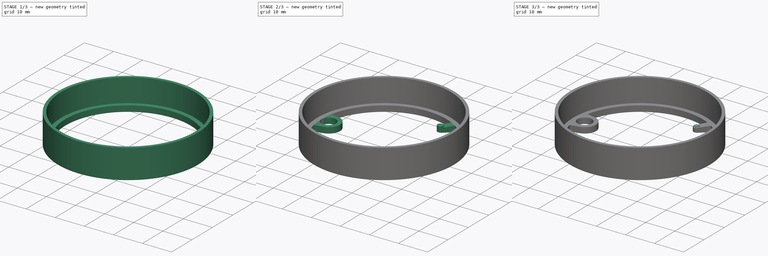
[diagram: build sequence overview — one tinted view per stage of 3, left to right]
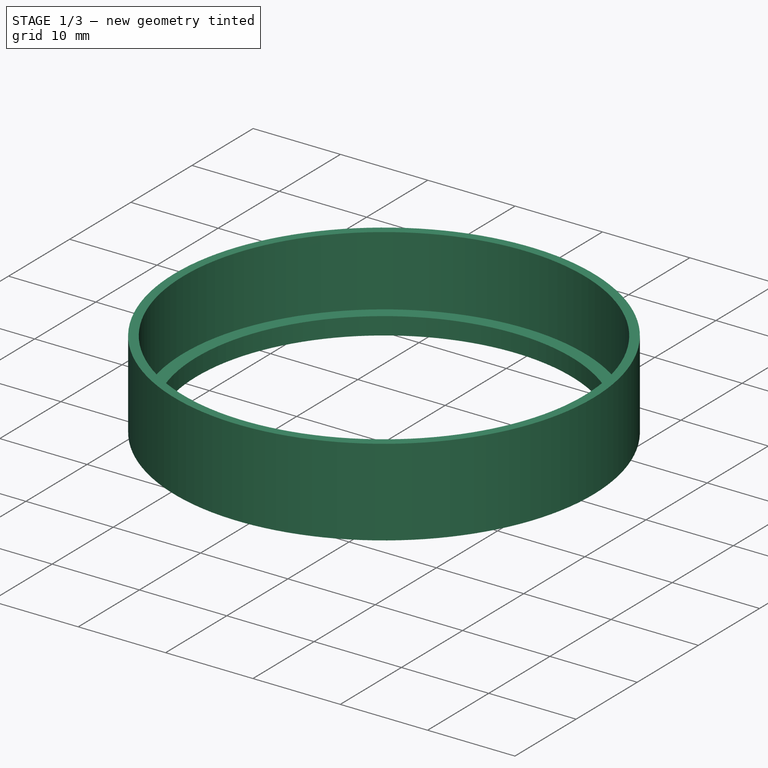
[diagram: stage 1 of 3 — iso view after this stage's code; geometry added in this stage tinted green]
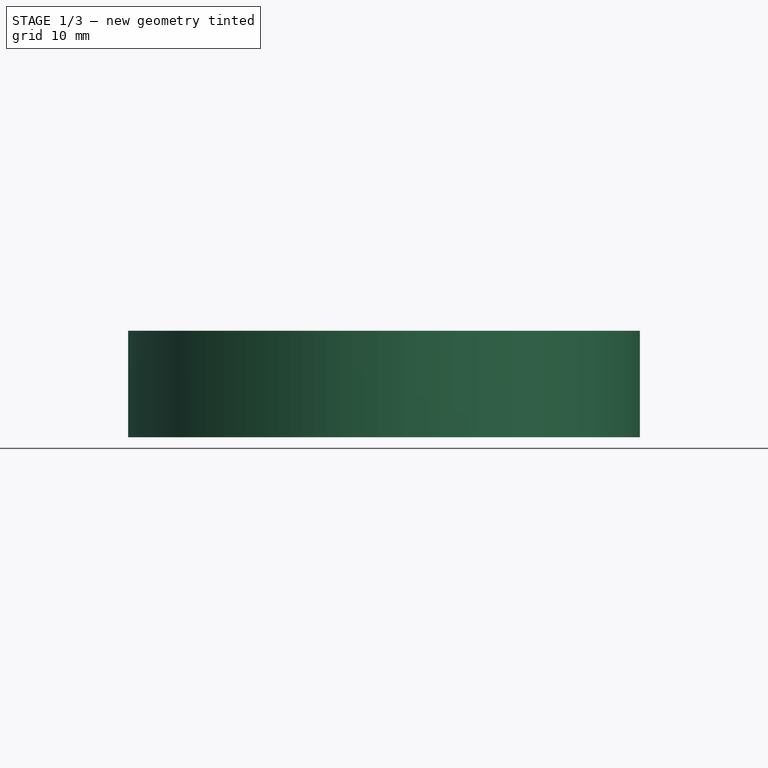
[diagram: stage 1 of 3 — front view after this stage's code; geometry added in this stage tinted green]
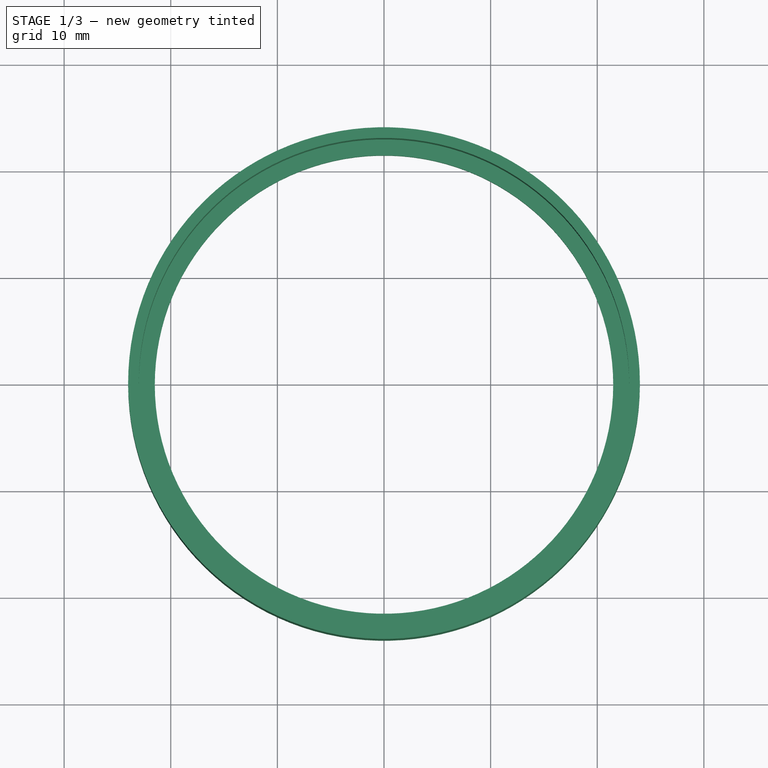
[diagram: stage 1 of 3 — top view after this stage's code; geometry added in this stage tinted green]
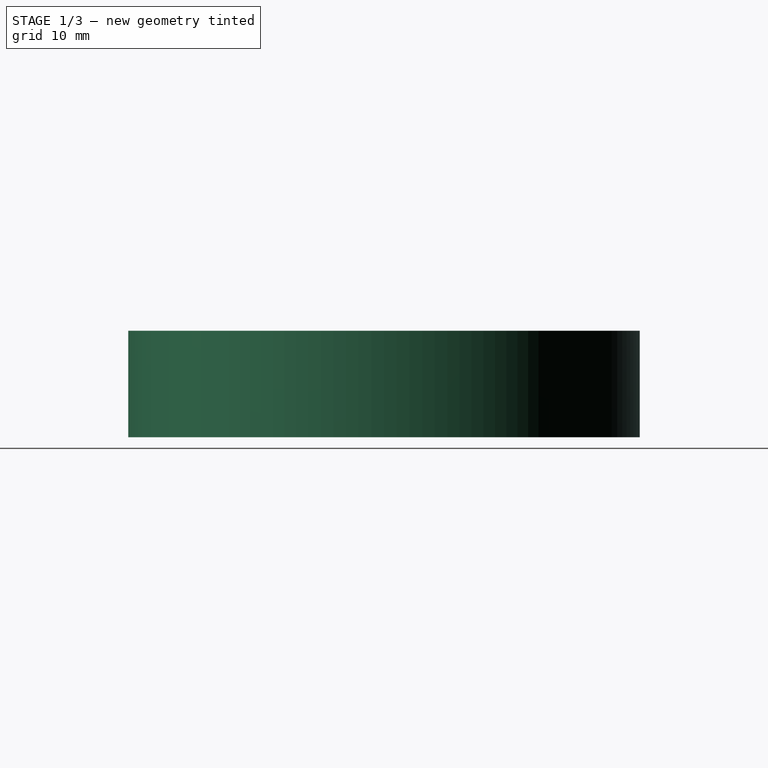
[diagram: stage 1 of 3 — right view after this stage's code; geometry added in this stage tinted green]
FCSTD DOCUMENT  (FreeCAD 0.22R37841 (Git))
Label: cover_SLA
License: All rights reserved
LicenseURL: http://en.wikipedia.org/wiki/All_rights_reserved
objects: Sketcher::SketchObject×5, PartDesign::CoordinateSystem×2, PartDesign::Pad×2, PartDesign::Chamfer×2, PartDesign::Revolution×1, PartDesign::Pocket×1, PartDesign::Groove×1, PartDesign::Body×1, App::Part×1
note: 22 computed .brp shape members not serialized (recipe doc carries the construction recipe); baked Part::Feature solids carry a one-line shape summary decoded from their .brp

FEATURE [PartDesign::CoordinateSystem] LCS_Origin
  AttacherType = Attacher::AttachEngine3D
  AttachmentSupport = -> [X_Axis]
  MapMode = 2
FEATURE [PartDesign::CoordinateSystem] LCS_Origin001
  AttacherType = Attacher::AttachEngine3D
  AttachmentSupport = -> [X_Axis001]
  MapMode = 2
FEATURE [Sketcher::SketchObject] Sketch
  AttachmentSupport = -> [XZ_Plane001]
  FullyConstrained = true
  MapMode = 5
  Placement = pos=(0,0,0) rot=(1,0,0;1.5708rad)
  sketch-geometry (8):
    g0: LineSegment StartX=0 StartY=0 StartZ=0 EndX=0 EndY=13 EndZ=0
    g1: LineSegment StartX=21.5 StartY=5 StartZ=0 EndX=21.5 EndY=3 EndZ=0
    g2: LineSegment StartX=21.5 StartY=3 StartZ=0 EndX=24 EndY=3 EndZ=0
    g3: LineSegment StartX=24 StartY=3 StartZ=0 EndX=24 EndY=13 EndZ=0
    g4: LineSegment StartX=23 StartY=13 StartZ=0 EndX=23 EndY=5 EndZ=0
    g5: LineSegment StartX=23 StartY=5 StartZ=0 EndX=21.5 EndY=5 EndZ=0
    g6: LineSegment StartX=24 StartY=13 StartZ=0 EndX=23 EndY=13 EndZ=0
    g7: GeomPoint X=21.5 Y=4 Z=0
  constraints (22):
    c: Coincident(g0,g-1)
    c: PointOnObject(g0,g-2)
    c: Coincident(g2,g1)
    c: Horizontal(g2)
    c: Coincident(g3,g2)
    c: Vertical(g3)
    c: Vertical(g4)
    c: Coincident(g5,g4)
    c: Coincident(g5,g1)
    c: Vertical(g1)
    c: DistanceX(g0,g4) = 23
    c: Horizontal(g5)
    c: Coincident(g6,g3)
    c: Horizontal(g6)
    c: DistanceY(g1,g1) = 2
    c: DistanceX(g0,g1) = 21.5
    c: Coincident(g6,g4)
    c: DistanceX(g0,g2) = 24
    c: DistanceY(g3,g3) = 10
    c: Symmetric(g1,g1,g7)
    c: DistanceY(g0,g7) = 4
    c: Horizontal(g4,g0)
FEATURE [PartDesign::Revolution] Revolution
  Angle = 360
  Angle2 = 60
  Axis = (0,2e-16,1)
  Base = (0,0,0)
  Placement = pos=(0,0,0) rot=(1,0,0;1.5708rad)
  Profile = -> Sketch
  ReferenceAxis = -> Sketch [V_Axis]
  Reversed = true
  Suppressed = false
  Type = 0
FEATURE [Sketcher::SketchObject] Sketch001
  AttachmentSupport = -> [XY_Plane001]
  FullyConstrained = true
  MapMode = 5
  sketch-geometry (9):
    g0: Circle CenterX=0 CenterY=0 CenterZ=0 NormalX=0 NormalY=0 NormalZ=1 AngleXU=0 Radius=17.5
    g1: Circle CenterX=-17.5 CenterY=0 CenterZ=0 NormalX=0 NormalY=0 NormalZ=1 AngleXU=0 Radius=2.625
    g2: Circle CenterX=-8.75 CenterY=15.1554 CenterZ=0 NormalX=0 NormalY=0 NormalZ=1 AngleXU=0 Radius=2.625
    g3: Circle CenterX=8.75 CenterY=15.1554 CenterZ=0 NormalX=0 NormalY=0 NormalZ=1 AngleXU=0 Radius=2.625
    g4: Circle CenterX=17.5 CenterY=0 CenterZ=0 NormalX=0 NormalY=0 NormalZ=1 AngleXU=0 Radius=2.625
    g5: Circle CenterX=8.75 CenterY=-15.1554 CenterZ=0 NormalX=0 NormalY=0 NormalZ=1 AngleXU=0 Radius=2.625
    g6: Circle CenterX=-8.75 CenterY=-15.1554 CenterZ=0 NormalX=0 NormalY=0 NormalZ=1 AngleXU=0 Radius=2.625
    g7: LineSegment StartX=-8.75 StartY=15.1554 StartZ=0 EndX=0 EndY=0 EndZ=0
    g8: LineSegment StartX=0 StartY=0 StartZ=0 EndX=8.75 EndY=-15.1554 EndZ=0
  constraints (24):
    c: Coincident(g0,g-1)
    c: PointOnObject(g1,g0)
    c: PointOnObject(g2,g0)
    c: PointOnObject(g3,g0)
    c: PointOnObject(g4,g0)
    c: PointOnObject(g5,g0)
    c: PointOnObject(g6,g0)
    c: PointOnObject(g1,g-1)
    c: PointOnObject(g4,g-1)
    c: Equal(g1,g2)
    c: Equal(g2,g3)
    c: Equal(g3,g4)
    c: Equal(g4,g5)
    c: Equal(g5,g6)
    c: Diameter(g4) = 5.25
    c: Coincident(g7,g2)
    c: Coincident(g7,g0)
    c: Coincident(g8,g0)
    c: Coincident(g8,g5)
    c: Parallel(g7,g8)
    c: Vertical(g2,g6)
    c: Vertical(g5,g3)
    c: Angle(g-1,g7) = 2.0944
    c: Diameter(g0) = 35
FEATURE [PartDesign::Pocket] Pocket
  BaseFeature = -> Revolution
  Direction = (0,0,-1)
  Length = 5.5
  Length2 = 5
  Placement = pos=(0,0,0) rot=(1,0,0;1.5708rad)
  Profile = -> Sketch001
  ReferenceAxis = -> Sketch001 [N_Axis]
  Reversed = true
  Suppressed = false
  Type = 0
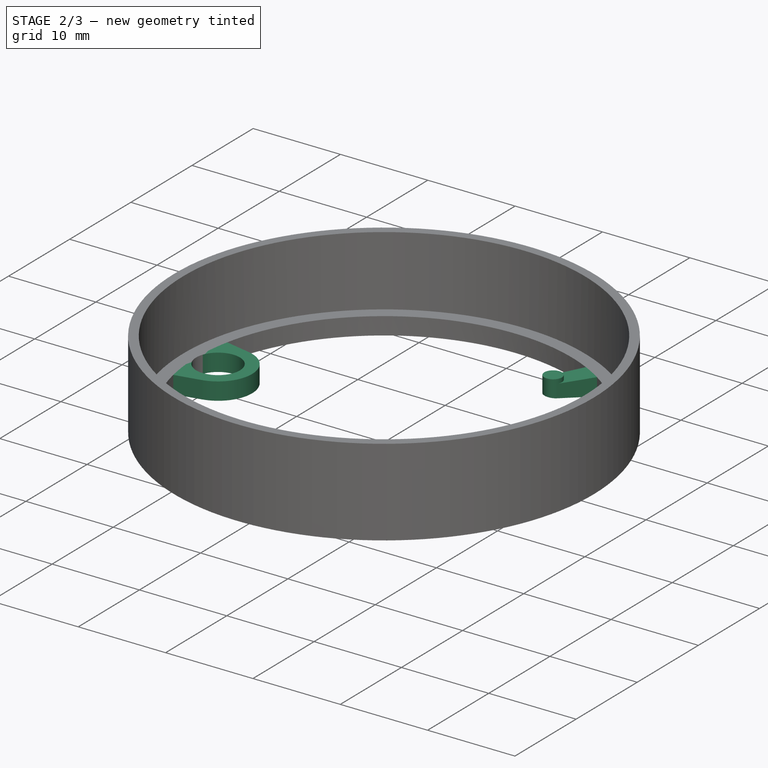
[diagram: stage 2 of 3 — iso view after this stage's code; geometry added in this stage tinted green]
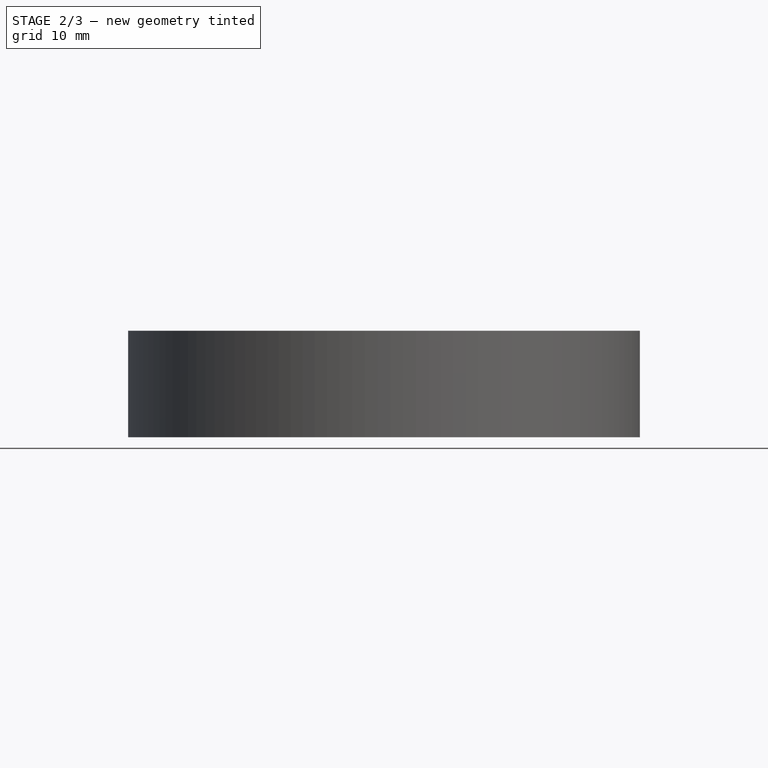
[diagram: stage 2 of 3 — front view after this stage's code; geometry added in this stage tinted green]
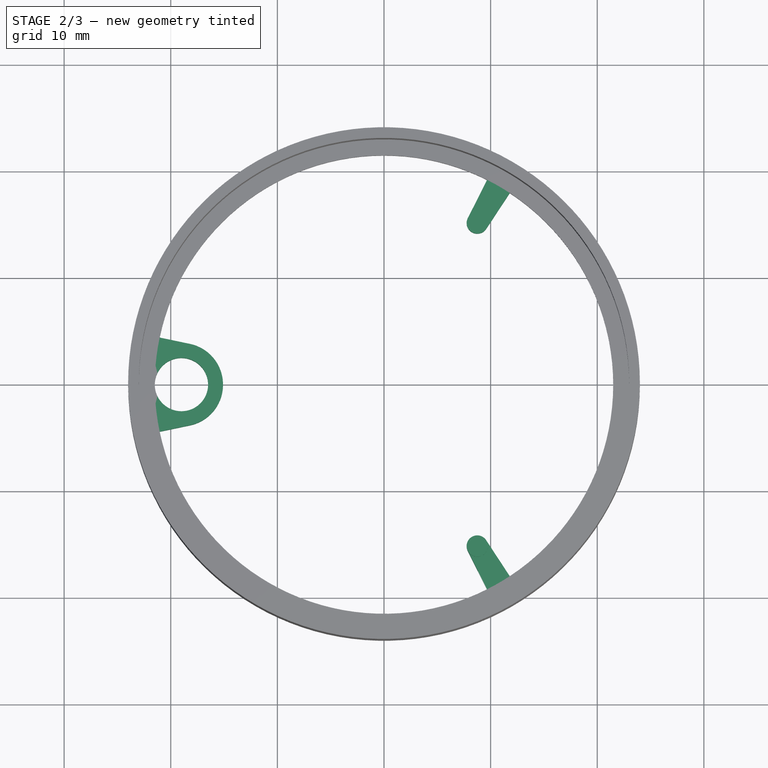
[diagram: stage 2 of 3 — top view after this stage's code; geometry added in this stage tinted green]
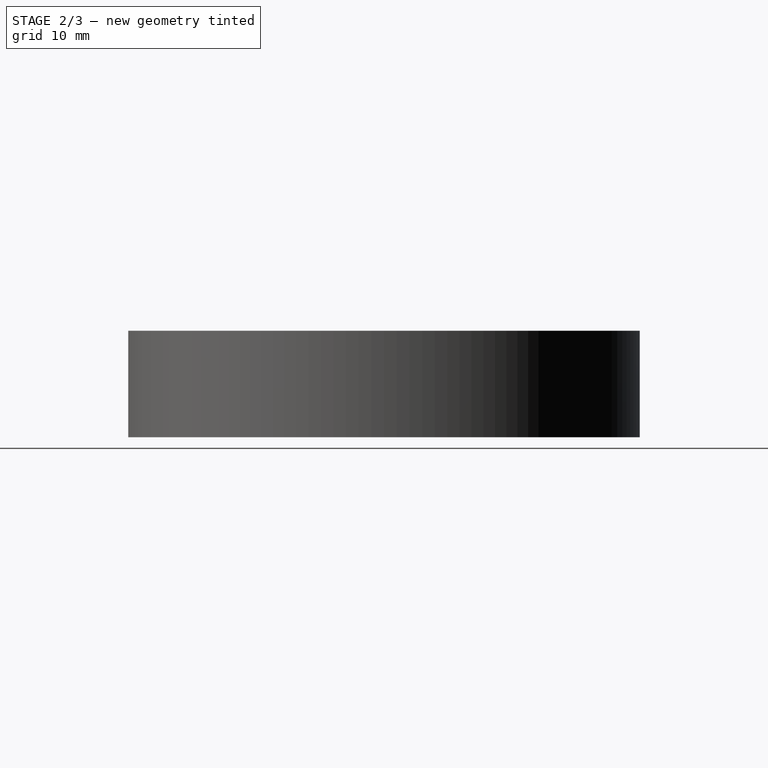
[diagram: stage 2 of 3 — right view after this stage's code; geometry added in this stage tinted green]
FEATURE [Sketcher::SketchObject] Sketch003
  AttachmentOffset = pos=(0,0,3) rot=(0,0,1;0rad)
  AttachmentSupport = -> [XY_Plane001]
  FullyConstrained = true
  MapMode = 5
  Placement = pos=(0,0,3) rot=(0,0,1;0rad)
  sketch-geometry (19):
    g0: ArcOfCircle CenterX=0 CenterY=0 CenterZ=0 NormalX=0 NormalY=0 NormalZ=1 AngleXU=0 Radius=23 StartAngle=2.93486 EndAngle=3.34833
    g1: ArcOfCircle CenterX=-19 CenterY=0 CenterZ=0 NormalX=0 NormalY=0 NormalZ=1 AngleXU=0 Radius=3.9 StartAngle=4.91912 EndAngle=7.64725
    g2: LineSegment StartX=-18.1995 StartY=-3.81696 StartZ=0 EndX=-22.5103 EndY=-4.72105 EndZ=0
    g3: LineSegment StartX=-18.1995 StartY=3.81696 StartZ=0 EndX=-22.5103 EndY=4.72105 EndZ=0
    g4: GeomPoint X=-3e-15 Y=0 Z=0
    g5: Circle CenterX=-19 CenterY=0 CenterZ=0 NormalX=0 NormalY=0 NormalZ=1 AngleXU=0 Radius=2.5
    g6: Circle CenterX=-3e-15 CenterY=0 CenterZ=0 NormalX=0 NormalY=0 NormalZ=1 AngleXU=0 Radius=15.1
    g7: Circle CenterX=0 CenterY=0 CenterZ=0 NormalX=0 NormalY=0 NormalZ=1 AngleXU=0 Radius=19
    g8: ArcOfCircle CenterX=8.75 CenterY=15.1554 CenterZ=0 NormalX=0 NormalY=0 NormalZ=1 AngleXU=0 Radius=1 StartAngle=2.67517 EndAngle=5.70241
    g9: ArcOfCircle CenterX=0 CenterY=0 CenterZ=0 NormalX=0 NormalY=0 NormalZ=1 AngleXU=0 Radius=23 StartAngle=0.990024 EndAngle=1.10437
    g10: ArcOfCircle CenterX=0 CenterY=0 CenterZ=0 NormalX=0 NormalY=0 NormalZ=1 AngleXU=0 Radius=23 StartAngle=5.17881 EndAngle=5.29316
    g11: ArcOfCircle CenterX=8.75 CenterY=-15.1554 CenterZ=0 NormalX=0 NormalY=0 NormalZ=1 AngleXU=0 Radius=1 StartAngle=0.580773 EndAngle=3.60802
    g12: Circle CenterX=0 CenterY=0 CenterZ=0 NormalX=0 NormalY=0 NormalZ=1 AngleXU=0 Radius=17.5
    g13: LineSegment StartX=0 StartY=0 StartZ=0 EndX=8.75 EndY=-15.1554 EndZ=0
    g14: LineSegment StartX=0 StartY=0 StartZ=0 EndX=8.75 EndY=15.1554 EndZ=0
    g15: LineSegment StartX=10.343 StartY=20.5432 StartZ=0 EndX=7.85682 EndY=15.6051 EndZ=0
    g16: LineSegment StartX=12.6194 StartY=19.2289 StartZ=0 EndX=9.58604 EndY=14.6068 EndZ=0
    g17: LineSegment StartX=12.6194 StartY=-19.2289 StartZ=0 EndX=9.58604 EndY=-14.6068 EndZ=0
    g18: LineSegment StartX=10.343 StartY=-20.5432 StartZ=0 EndX=7.85682 EndY=-15.6051 EndZ=0
  constraints (47):
    c: Coincident(g0,g-1)
    c: Coincident(g2,g0)
    c: Tangent(g2,g1) = 1.5708
    c: Radius(g0) = 23
    c: Coincident(g3,g0)
    c: Tangent(g3,g1) = -1.5708
    c: PointOnObject(g4,g2)
    c: PointOnObject(g4,g3)
    c: PointOnObject(g1,g-1)
    c: PointOnObject(g4,g-1)
    c: PointOnObject(g0,g3)
    c: Coincident(g5,g1)
    c: Diameter(g5) = 5
    c: Coincident(g6,g4)
    c: Tangent(g1,g6)
    c: Diameter(g6) = 30.2
    c: Coincident(g7,g0)
    c: PointOnObject(g1,g7)
    c: Diameter(g7) = 38
    c: Coincident(g9,g0)
    c: Coincident(g10,g0)
    c: Coincident(g12,g0)
    c: PointOnObject(g11,g12)
    c: Diameter(g12) = 35
    c: Coincident(g13,g0)
    c: Coincident(g13,g11)
    c: Coincident(g14,g0)
    c: Coincident(g14,g8)
    c: PointOnObject(g8,g12)
    c: Angle(g-1,g14) = 1.0472
    c: Coincident(g15,g9)
    c: Coincident(g16,g9)
    c: Coincident(g17,g10)
    c: Coincident(g18,g10)
    c: Angle(g13,g-1) = 1.0472
    c: Equal(g8,g11)
    c: Equal(g10,g9)
    c: Equal(g10,g0)
    c: Tangent(g18,g11) = 1.5708
    c: Tangent(g17,g11) = -1.5708
    c: Tangent(g15,g8) = -1.5708
    c: Tangent(g16,g8) = 1.5708
    c: PointOnObject(g0,g15)
    c: PointOnObject(g0,g18)
    c: PointOnObject(g0,g17)
    c: Radius(g8) = 1
    c: PointOnObject(g0,g16)
FEATURE [PartDesign::Pad] Pad
  BaseFeature = -> Pocket
  Direction = (0,0,1)
  Length = 2
  Length2 = 10
  Placement = pos=(0,0,0) rot=(1,0,0;1.5708rad)
  Profile = -> Sketch003
  ReferenceAxis = -> Sketch003 [N_Axis]
  Suppressed = false
  Type = 0
FEATURE [Sketcher::SketchObject] Sketch004
  AttachmentSupport = -> [YZ_Plane001]
  FullyConstrained = true
  MapMode = 5
  Placement = pos=(0,0,0) rot=(0.57735,0.57735,0.57735;2.0944rad)
  sketch-geometry (4):
    g0: LineSegment StartX=0 StartY=3 StartZ=0 EndX=-21.5 EndY=3 EndZ=0
    g1: LineSegment StartX=-21.5 StartY=3 StartZ=0 EndX=0 EndY=5.6875 EndZ=0
    g2: LineSegment StartX=0 StartY=3 StartZ=0 EndX=0 EndY=5.6875 EndZ=0
    g3: LineSegment StartX=-17.5 StartY=3 StartZ=0 EndX=-17.5 EndY=3.5 EndZ=0
  constraints (13):
    c: PointOnObject(g0,g-2)
    c: Horizontal(g0)
    c: Coincident(g1,g0)
    c: PointOnObject(g1,g-2)
    c: Coincident(g2,g0)
    c: Coincident(g2,g1)
    c: PointOnObject(g3,g0)
    c: PointOnObject(g3,g1)
    c: Vertical(g3)
    c: Distance(g-1,g0) = 3
    c: Distance(g3,g3) = 0.5
    c: DistanceX(g3,g-1) = 17.5
    c: DistanceX(g0,g0) = 21.5
FEATURE [PartDesign::Groove] Groove
  Angle = 180
  Angle2 = 60
  Axis = (0,0,1)
  Base = (0,0,0)
  BaseFeature = -> Pad
  Placement = pos=(0,0,0) rot=(1,0,0;1.5708rad)
  Profile = -> Sketch004
  ReferenceAxis = -> Sketch004 [V_Axis]
  Suppressed = false
  Type = 0
FEATURE [Sketcher::SketchObject] Sketch005
  AttachmentOffset = pos=(0,0,5) rot=(0,0,1;0rad)
  AttachmentSupport = -> [XY_Plane001]
  FullyConstrained = true
  MapMode = 5
  Placement = pos=(0,0,5) rot=(0,0,1;0rad)
  sketch-geometry (5):
    g0: LineSegment StartX=0 StartY=0 StartZ=0 EndX=8.75 EndY=15.1554 EndZ=0
    g1: Circle CenterX=0 CenterY=0 CenterZ=0 NormalX=0 NormalY=0 NormalZ=1 AngleXU=0 Radius=17.5
    g2: LineSegment StartX=0 StartY=0 StartZ=0 EndX=8.75 EndY=-15.1554 EndZ=0
    g3: Circle CenterX=8.75 CenterY=-15.1554 CenterZ=0 NormalX=0 NormalY=0 NormalZ=1 AngleXU=0 Radius=1
    g4: Circle CenterX=8.75 CenterY=15.1554 CenterZ=0 NormalX=0 NormalY=0 NormalZ=1 AngleXU=0 Radius=1
  constraints (12):
    c: Coincident(g0,g-1)
    c: Coincident(g1,g0)
    c: PointOnObject(g0,g1)
    c: Coincident(g2,g0)
    c: PointOnObject(g2,g1)
    c: Coincident(g3,g2)
    c: Coincident(g4,g0)
    c: Equal(g4,g3)
    c: Diameter(g4) = 2
    c: Diameter(g1) = 35
    c: Angle(g2,g-1) = 1.0472
    c: Angle(g-1,g0) = 1.0472
FEATURE [PartDesign::Pad] Pad001
  BaseFeature = -> Groove
  Direction = (0,0,1)
  Length = 0.5
  Length2 = 10
  Placement = pos=(0,0,0) rot=(1,0,0;1.5708rad)
  Profile = -> Sketch005
  ReferenceAxis = -> Sketch005 [N_Axis]
  Suppressed = false
  Type = 0
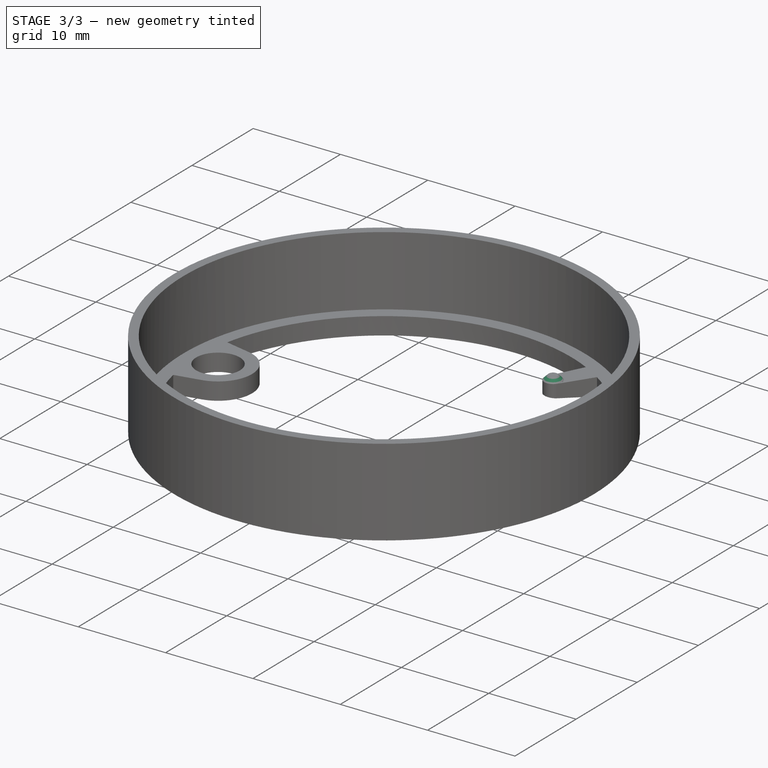
[diagram: stage 3 of 3 — iso view after this stage's code; geometry added in this stage tinted green]
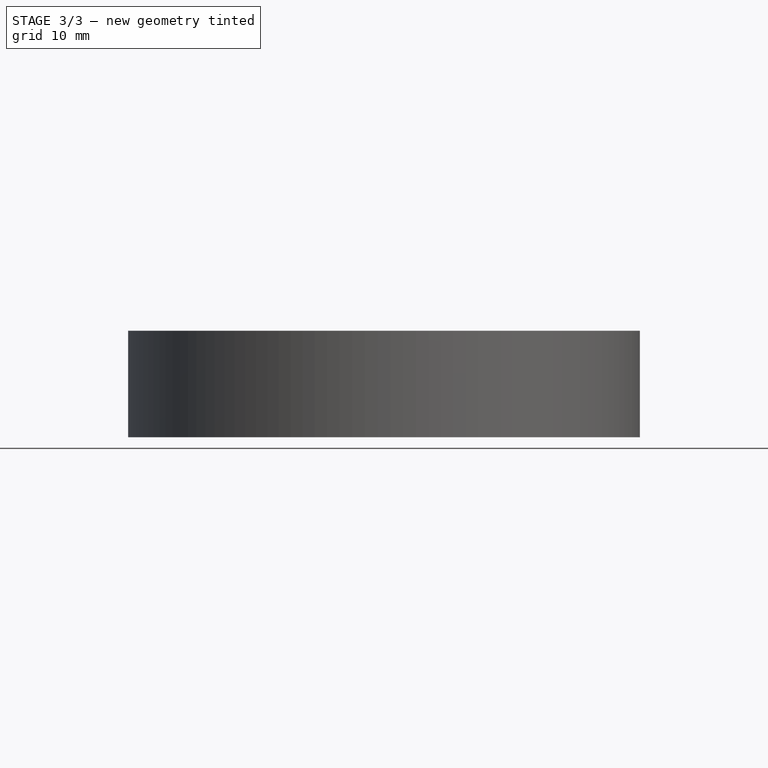
[diagram: stage 3 of 3 — front view after this stage's code; geometry added in this stage tinted green]
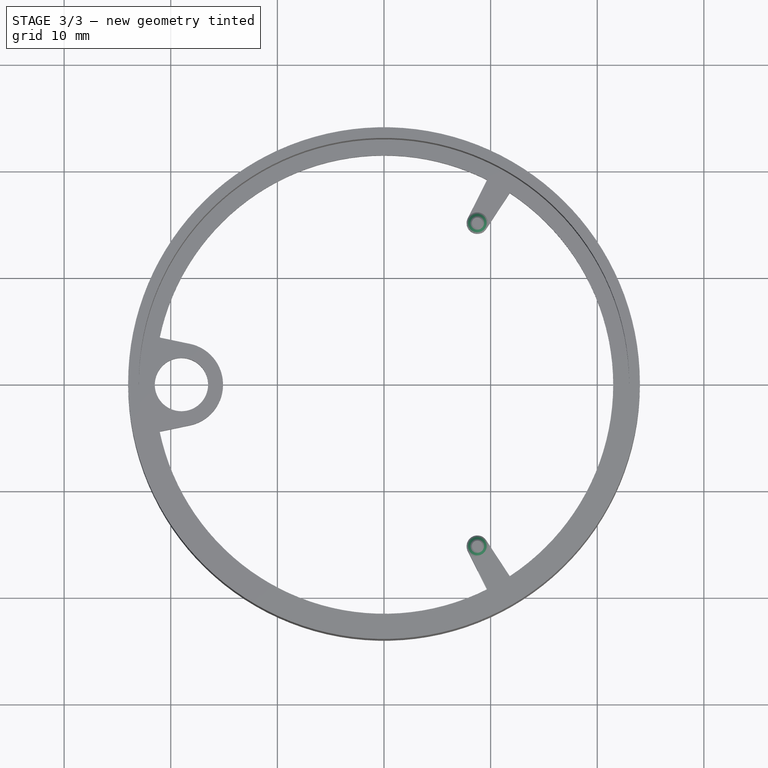
[diagram: stage 3 of 3 — top view after this stage's code; geometry added in this stage tinted green]
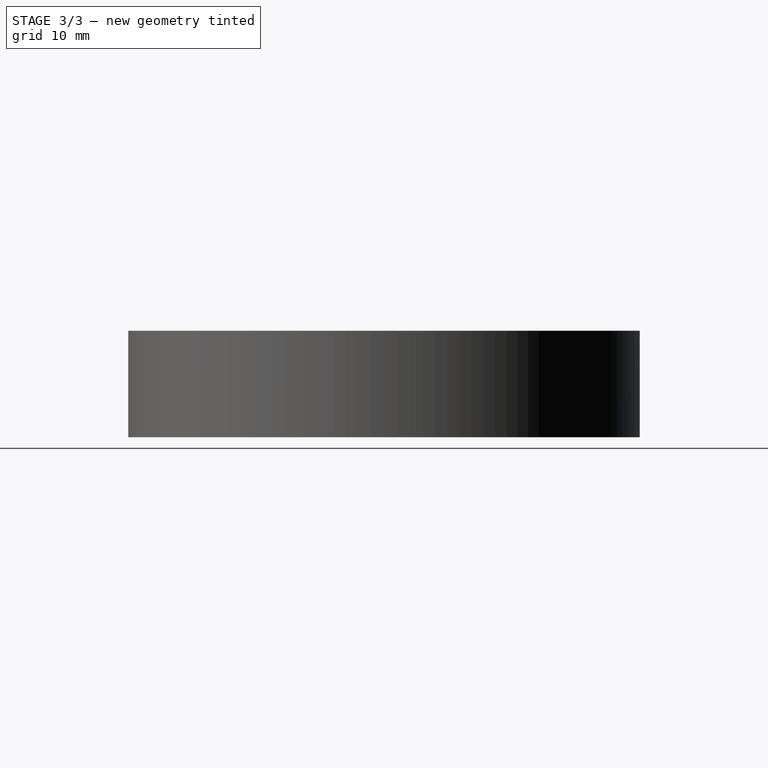
[diagram: stage 3 of 3 — right view after this stage's code; geometry added in this stage tinted green]
FEATURE [PartDesign::Chamfer] Chamfer
  Angle = 45
  Base = -> Pad001 [Edge85]
  BaseFeature = -> Pad001
  ChamferType = 2
  FlipDirection = false
  Placement = pos=(0,0,0) rot=(1,0,0;1.5708rad)
  Size = 0.49
  Size2 = 1
  SupportTransform = false
  Suppressed = false
  UseAllEdges = false
FEATURE [PartDesign::Chamfer] Chamfer001
  Angle = 45
  Base = -> Chamfer [Edge92]
  BaseFeature = -> Chamfer
  ChamferType = 2
  FlipDirection = false
  Placement = pos=(0,0,0) rot=(1,0,0;1.5708rad)
  Size = 0.49
  Size2 = 1
  SupportTransform = false
  Suppressed = false
  UseAllEdges = false
FEATURE [PartDesign::Body] Body
  AllowCompound = false
  Group = -> [LCS_Origin001,Sketch,Revolution,Sketch001,Pocket,Sketch003,Pad,Sketch004,Groove,Sketch005,Pad001,Chamfer,Chamfer001]
  Origin = -> Origin001
  Tip = -> Chamfer001
FEATURE [App::Part] Part
  Group = -> [LCS_Origin,Body]
  Origin = -> Origin
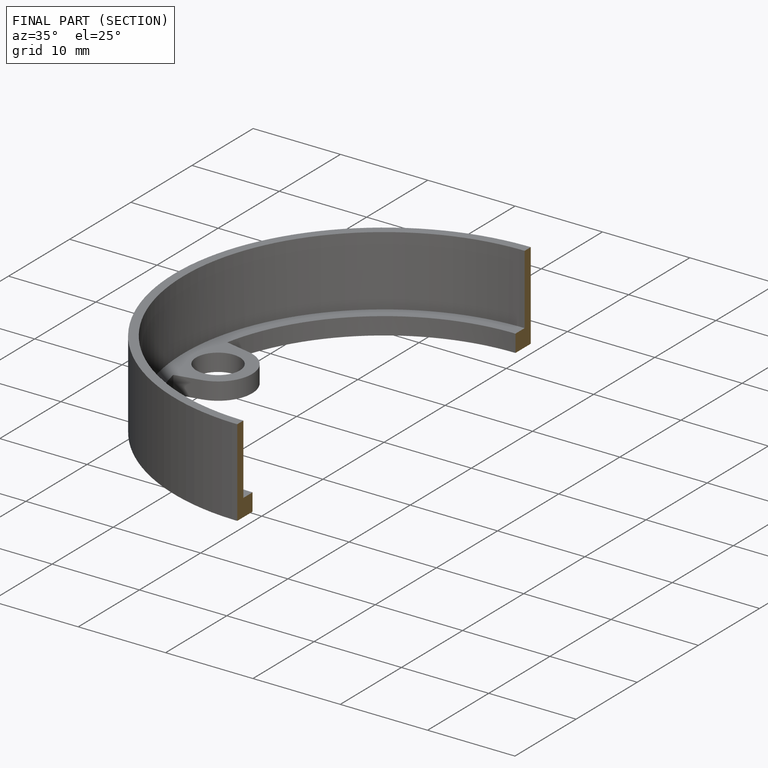
[diagram: finished part — half-section view (interior)]
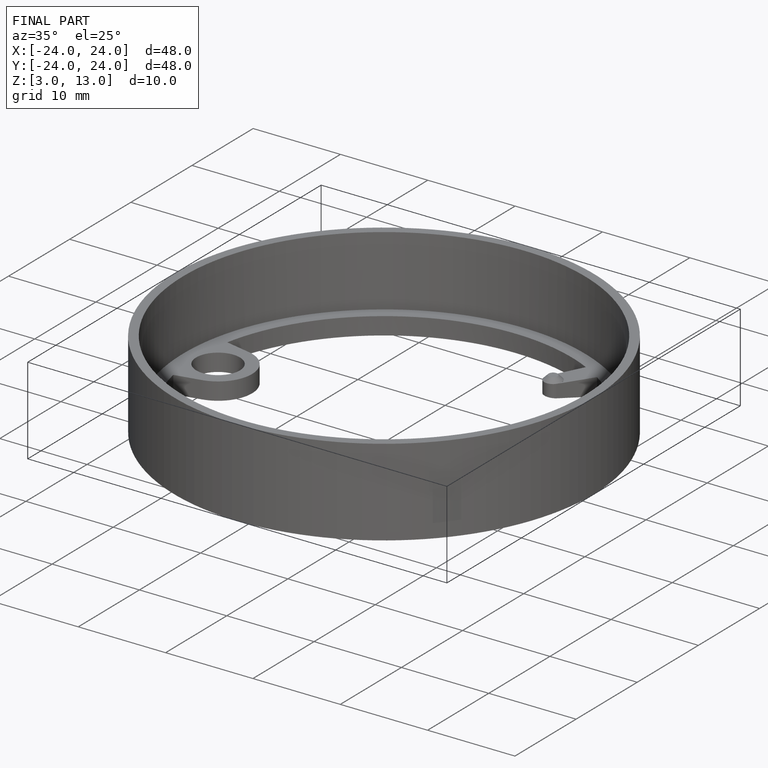
[diagram: finished part — iso view with bounding-box wireframe]
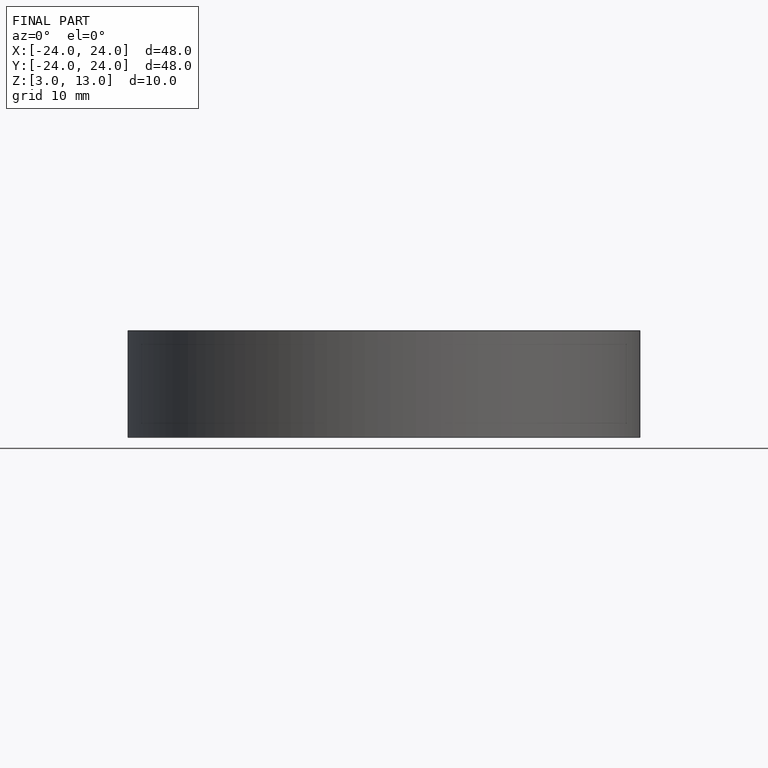
[diagram: finished part — front view with bounding-box wireframe]
